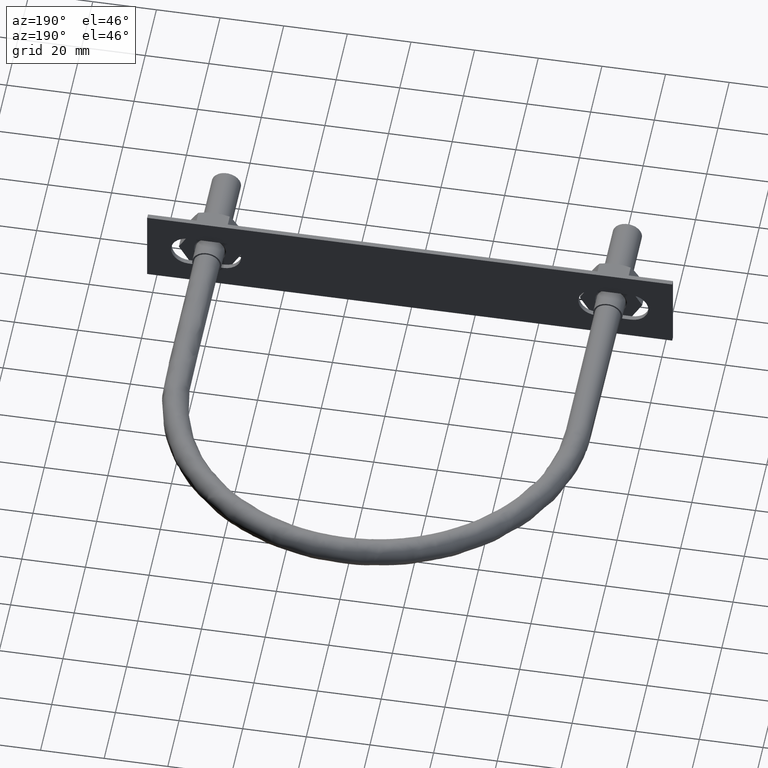
[diagram: clean part render]
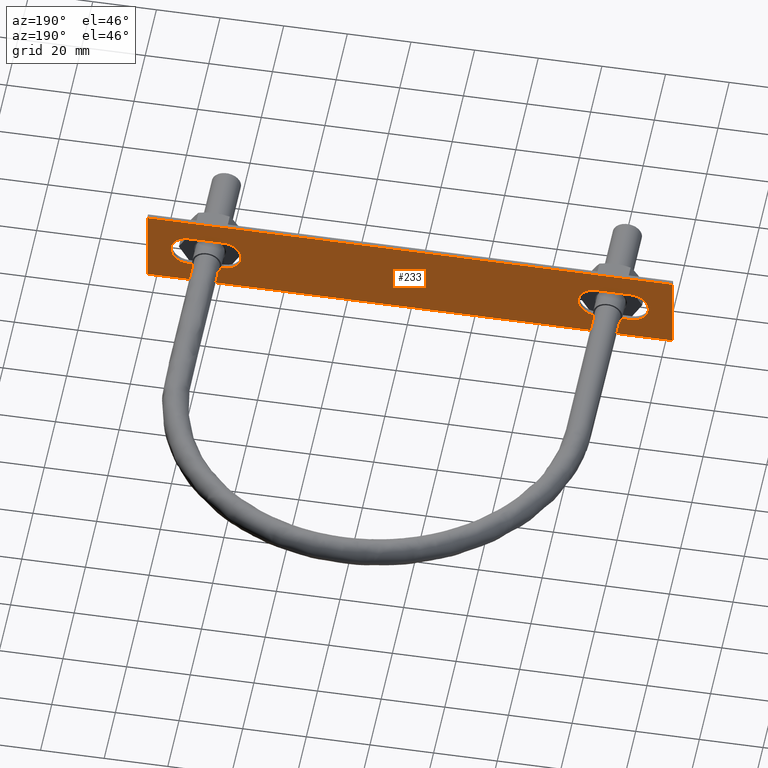
[diagram: same view with one face highlighted and labeled with its STEP entity id]
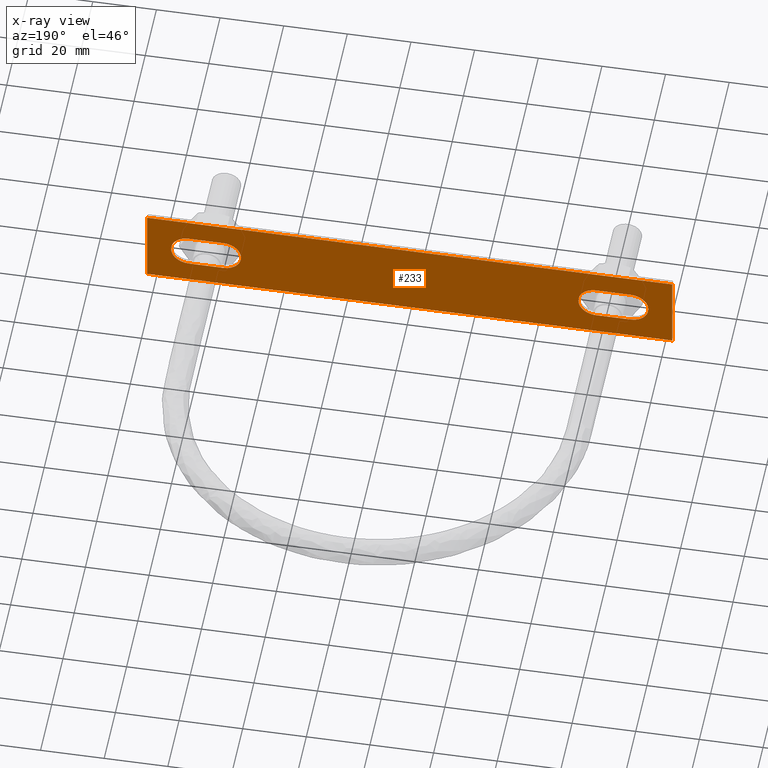
[diagram: x-ray of the same camera — body ghosted, the highlighted face saturated]
A machine part, auxiliary view. The second image highlights one B-rep face of the part: STEP entity #233.
The next image is the same camera in x-ray: the body ghosted, the highlighted face saturated — about 0% of this face is hidden behind the body in this view.
In plain terms, the highlighted planar face has unit normal (0, -1, 0).
Its self-contained STEP definition (entity closure, byte-faithful):
#233 = ADVANCED_FACE( '', ( #326, #327, #328 ), #329, .F. );
#326 = FACE_BOUND( '', #646, .T. );
#327 = FACE_BOUND( '', #647, .T. );
#328 = FACE_OUTER_BOUND( '', #648, .T. );
#329 = PLANE( '', #649 );
#646 = EDGE_LOOP( '', ( #863, #864, #865, #866, #867, #868 ) );
#647 = EDGE_LOOP( '', ( #869, #870, #871, #872, #873, #874 ) );
#648 = EDGE_LOOP( '', ( #875, #876, #877, #878 ) );
#649 = AXIS2_PLACEMENT_3D( '', #879, #880, #881 );
#863 = ORIENTED_EDGE( '', *, *, #1334, .T. );
#864 = ORIENTED_EDGE( '', *, *, #1335, .T. );
#865 = ORIENTED_EDGE( '', *, *, #1336, .T. );
#866 = ORIENTED_EDGE( '', *, *, #1337, .T. );
#867 = ORIENTED_EDGE( '', *, *, #1338, .T. );
#868 = ORIENTED_EDGE( '', *, *, #1339, .T. );
#869 = ORIENTED_EDGE( '', *, *, #1326, .T. );
#870 = ORIENTED_EDGE( '', *, *, #1324, .T. );
#871 = ORIENTED_EDGE( '', *, *, #1332, .T. );
#872 = ORIENTED_EDGE( '', *, *, #1340, .T. );
#873 = ORIENTED_EDGE( '', *, *, #1329, .T. );
#874 = ORIENTED_EDGE( '', *, *, #1331, .T. );
#875 = ORIENTED_EDGE( '', *, *, #1320, .F. );
#876 = ORIENTED_EDGE( '', *, *, #1341, .F. );
#877 = ORIENTED_EDGE( '', *, *, #1342, .F. );
#878 = ORIENTED_EDGE( '', *, *, #1343, .F. );
#879 = CARTESIAN_POINT( '', ( -82.5000000000000, -4.30000000000000, -12.5000000000000 ) );
#880 = DIRECTION( '', ( 0.000000000000000, -1.00000000000000, 6.12303176911189E-017 ) );
#881 = DIRECTION( '', ( 0.000000000000000, -6.12303176911189E-017, -1.00000000000000 ) );
#1320 = EDGE_CURVE( '', #1500, #1501, #1502, .T. );
#1324 = EDGE_CURVE( '', #1507, #1505, #1508, .T. );
#1326 = EDGE_CURVE( '', #1510, #1507, #1511, .T. );
#1329 = EDGE_CURVE( '', #1515, #1513, #1516, .T. );
#1331 = EDGE_CURVE( '', #1513, #1510, #1518, .T. );
#1332 = EDGE_CURVE( '', #1505, #1519, #1520, .T. );
#1334 = EDGE_CURVE( '', #1522, #1523, #1524, .T. );
#1335 = EDGE_CURVE( '', #1523, #1525, #1526, .T. );
#1336 = EDGE_CURVE( '', #1525, #1527, #1528, .T. );
#1337 = EDGE_CURVE( '', #1527, #1529, #1530, .T. );
#1338 = EDGE_CURVE( '', #1529, #1531, #1532, .T. );
#1339 = EDGE_CURVE( '', #1531, #1522, #1533, .T. );
#1340 = EDGE_CURVE( '', #1519, #1515, #1534, .T. );
#1341 = EDGE_CURVE( '', #1535, #1500, #1536, .T. );
#1342 = EDGE_CURVE( '', #1537, #1535, #1538, .T. );
#1343 = EDGE_CURVE( '', #1501, #1537, #1539, .T. );
#1500 = VERTEX_POINT( '', #1790 );
#1501 = VERTEX_POINT( '', #1791 );
#1502 = LINE( '', #1792, #1793 );
#1505 = VERTEX_POINT( '', #1798 );
#1507 = VERTEX_POINT( '', #1801 );
#1508 = CIRCLE( '', #1802, 5.50000000000001 );
#1510 = VERTEX_POINT( '', #1805 );
#1511 = CIRCLE( '', #1806, 5.50000000000000 );
#1513 = VERTEX_POINT( '', #1809 );
#1515 = VERTEX_POINT( '', #1812 );
#1516 = CIRCLE( '', #1813, 5.50000000000001 );
#1518 = LINE( '', #1816, #1817 );
#1519 = VERTEX_POINT( '', #1818 );
#1520 = LINE( '', #1819, #1820 );
#1522 = VERTEX_POINT( '', #1823 );
#1523 = VERTEX_POINT( '', #1824 );
#1524 = CIRCLE( '', #1825, 5.50000000000000 );
#1525 = VERTEX_POINT( '', #1826 );
#1526 = CIRCLE( '', #1827, 5.50000000000001 );
#1527 = VERTEX_POINT( '', #1828 );
#1528 = LINE( '', #1829, #1830 );
#1529 = VERTEX_POINT( '', #1831 );
#1530 = CIRCLE( '', #1832, 5.50000000000000 );
#1531 = VERTEX_POINT( '', #1833 );
#1532 = CIRCLE( '', #1834, 5.50000000000001 );
#1533 = LINE( '', #1835, #1836 );
#1534 = CIRCLE( '', #1837, 5.50000000000000 );
#1535 = VERTEX_POINT( '', #1838 );
#1536 = LINE( '', #1839, #1840 );
#1537 = VERTEX_POINT( '', #1841 );
#1538 = LINE( '', #1842, #1843 );
#1539 = LINE( '', #1844, #1845 );
#1790 = CARTESIAN_POINT( '', ( -82.5000000000000, -4.30000000000000, 12.5000000000000 ) );
#1791 = CARTESIAN_POINT( '', ( -82.5000000000000, -4.30000000000000, -12.5000000000000 ) );
#1792 = CARTESIAN_POINT( '', ( -82.5000000000000, -4.30000000000000, 12.5000000000000 ) );
#1793 = VECTOR( '', #2250, 1000.00000000000 );
#1798 = CARTESIAN_POINT( '', ( -69.5000000000000, -4.29999850006748, -5.50000000000000 ) );
#1801 = CARTESIAN_POINT( '', ( -75.0000000000000, -4.29999850006748, -1.73472347597681E-015 ) );
#1802 = AXIS2_PLACEMENT_3D( '', #2254, #2255, #2256 );
#1805 = CARTESIAN_POINT( '', ( -69.5000000000000, -4.29999850006748, 5.50000000000000 ) );
#1806 = AXIS2_PLACEMENT_3D( '', #2258, #2259, #2260 );
#1809 = CARTESIAN_POINT( '', ( -58.5000000000000, -4.29999850006748, 5.50000000000000 ) );
#1812 = CARTESIAN_POINT( '', ( -53.0000000000000, -4.29999850006748, -1.73472347597681E-015 ) );
#1813 = AXIS2_PLACEMENT_3D( '', #2263, #2264, #2265 );
#1816 = CARTESIAN_POINT( '', ( -58.5000000000000, -4.29999850006748, 5.50000000000000 ) );
#1817 = VECTOR( '', #2267, 1000.00000000000 );
#1818 = CARTESIAN_POINT( '', ( -58.5000000000000, -4.29999850006748, -5.50000000000000 ) );
#1819 = CARTESIAN_POINT( '', ( -69.5000000000000, -4.29999850006748, -5.50000000000000 ) );
#1820 = VECTOR( '', #2268, 1000.00000000000 );
#1823 = CARTESIAN_POINT( '', ( 58.5000000000000, -4.29999850006748, 5.50000000000000 ) );
#1824 = CARTESIAN_POINT( '', ( 53.0000000000000, -4.29999850006748, -1.73472347597681E-015 ) );
#1825 = AXIS2_PLACEMENT_3D( '', #2270, #2271, #2272 );
#1826 = CARTESIAN_POINT( '', ( 58.5000000000000, -4.29999850006748, -5.50000000000000 ) );
#1827 = AXIS2_PLACEMENT_3D( '', #2273, #2274, #2275 );
#1828 = CARTESIAN_POINT( '', ( 69.5000000000000, -4.29999850006748, -5.50000000000000 ) );
#1829 = CARTESIAN_POINT( '', ( 58.5000000000000, -4.29999850006748, -5.50000000000000 ) );
#1830 = VECTOR( '', #2276, 1000.00000000000 );
#1831 = CARTESIAN_POINT( '', ( 75.0000000000000, -4.29999850006748, -1.73472347597681E-015 ) );
#1832 = AXIS2_PLACEMENT_3D( '', #2277, #2278, #2279 );
#1833 = CARTESIAN_POINT( '', ( 69.5000000000000, -4.29999850006748, 5.50000000000000 ) );
#1834 = AXIS2_PLACEMENT_3D( '', #2280, #2281, #2282 );
#1835 = CARTESIAN_POINT( '', ( 69.5000000000000, -4.29999850006748, 5.50000000000000 ) );
#1836 = VECTOR( '', #2283, 1000.00000000000 );
#1837 = AXIS2_PLACEMENT_3D( '', #2284, #2285, #2286 );
#1838 = CARTESIAN_POINT( '', ( 82.5000000000000, -4.30000000000000, 12.5000000000000 ) );
#1839 = CARTESIAN_POINT( '', ( 82.5000000000000, -4.30000000000000, 12.5000000000000 ) );
#1840 = VECTOR( '', #2287, 1000.00000000000 );
#1841 = CARTESIAN_POINT( '', ( 82.5000000000000, -4.30000000000000, -12.5000000000000 ) );
#1842 = CARTESIAN_POINT( '', ( 82.5000000000000, -4.30000000000000, -12.5000000000000 ) );
#1843 = VECTOR( '', #2288, 1000.00000000000 );
#1844 = CARTESIAN_POINT( '', ( -82.5000000000000, -4.30000000000000, -12.5000000000000 ) );
#1845 = VECTOR( '', #2289, 1000.00000000000 );
#2250 = DIRECTION( '', ( 0.000000000000000, -6.12303176911189E-017, -1.00000000000000 ) );
#2254 = CARTESIAN_POINT( '', ( -69.5000000000000, -4.29999850006748, -1.73472347597681E-015 ) );
#2255 = DIRECTION( '', ( 0.000000000000000, -1.00000000000000, 6.12303176911189E-017 ) );
#2256 = DIRECTION( '', ( -1.00000000000000, 1.65175178900686E-081, 2.69760447322722E-065 ) );
#2258 = CARTESIAN_POINT( '', ( -69.5000000000000, -4.29999850006748, -1.73472347597681E-015 ) );
#2259 = DIRECTION( '', ( 4.25417982600664E-081, -1.00000000000000, 2.18932451870829E-016 ) );
#2260 = DIRECTION( '', ( 2.69760447322722E-065, 2.18932451870829E-016, 1.00000000000000 ) );
#2263 = CARTESIAN_POINT( '', ( -58.5000000000000, -4.29999850006748, -1.73472347597681E-015 ) );
#2264 = DIRECTION( '', ( 4.25417982600663E-081, -1.00000000000000, 2.18932451870828E-016 ) );
#2265 = DIRECTION( '', ( 1.00000000000000, -1.65175178900686E-081, -2.69760447322722E-065 ) );
#2267 = DIRECTION( '', ( -1.00000000000000, 0.000000000000000, 2.69760447322722E-065 ) );
#2268 = DIRECTION( '', ( 1.00000000000000, 0.000000000000000, -2.69760447322722E-065 ) );
#2270 = CARTESIAN_POINT( '', ( 58.5000000000000, -4.29999850006748, -1.73472347597681E-015 ) );
#2271 = DIRECTION( '', ( 0.000000000000000, -1.00000000000000, 2.18932451870829E-016 ) );
#2272 = DIRECTION( '', ( 0.000000000000000, 2.18932451870829E-016, 1.00000000000000 ) );
#2273 = CARTESIAN_POINT( '', ( 58.5000000000000, -4.29999850006748, -1.73472347597681E-015 ) );
#2274 = DIRECTION( '', ( 0.000000000000000, -1.00000000000000, 6.12303176911189E-017 ) );
#2275 = DIRECTION( '', ( -1.00000000000000, 0.000000000000000, 0.000000000000000 ) );
#2276 = DIRECTION( '', ( 1.00000000000000, 0.000000000000000, 0.000000000000000 ) );
#2277 = CARTESIAN_POINT( '', ( 69.5000000000000, -4.29999850006748, -1.73472347597681E-015 ) );
#2278 = DIRECTION( '', ( 0.000000000000000, -1.00000000000000, 6.12303176911189E-017 ) );
#2279 = DIRECTION( '', ( 0.000000000000000, -6.12303176911189E-017, -1.00000000000000 ) );
#2280 = CARTESIAN_POINT( '', ( 69.5000000000000, -4.29999850006748, -1.73472347597681E-015 ) );
#2281 = DIRECTION( '', ( 0.000000000000000, -1.00000000000000, 2.18932451870828E-016 ) );
#2282 = DIRECTION( '', ( 1.00000000000000, 0.000000000000000, 0.000000000000000 ) );
#2283 = DIRECTION( '', ( -1.00000000000000, 0.000000000000000, 0.000000000000000 ) );
#2284 = CARTESIAN_POINT( '', ( -58.5000000000000, -4.29999850006748, -1.73472347597681E-015 ) );
#2285 = DIRECTION( '', ( 0.000000000000000, -1.00000000000000, 6.12303176911189E-017 ) );
#2286 = DIRECTION( '', ( -2.69760447322722E-065, -6.12303176911189E-017, -1.00000000000000 ) );
#2287 = DIRECTION( '', ( -1.00000000000000, 0.000000000000000, 0.000000000000000 ) );
#2288 = DIRECTION( '', ( 0.000000000000000, 6.12303176911189E-017, 1.00000000000000 ) );
#2289 = DIRECTION( '', ( 1.00000000000000, 0.000000000000000, 0.000000000000000 ) );